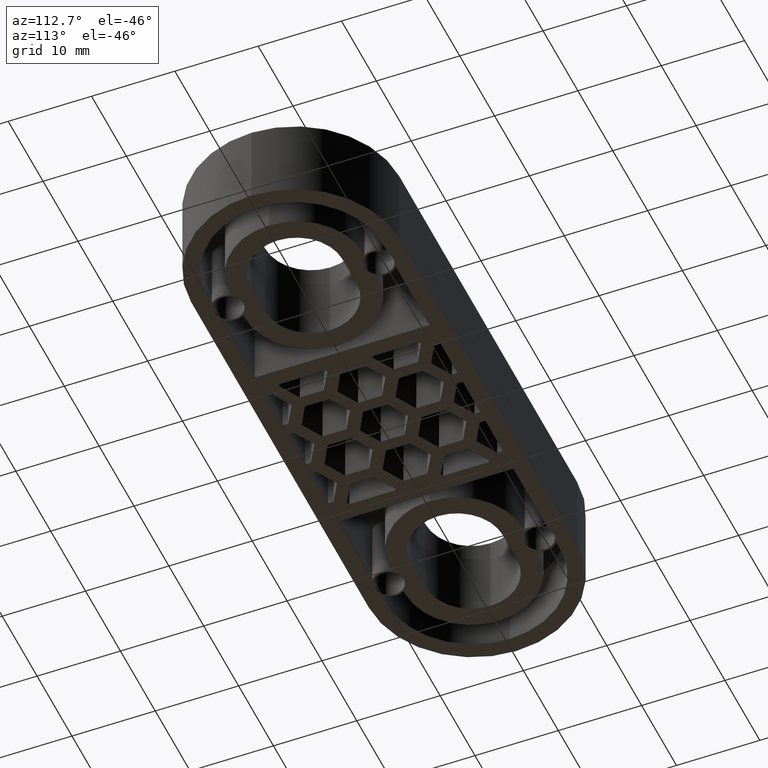
[diagram: clean part render]
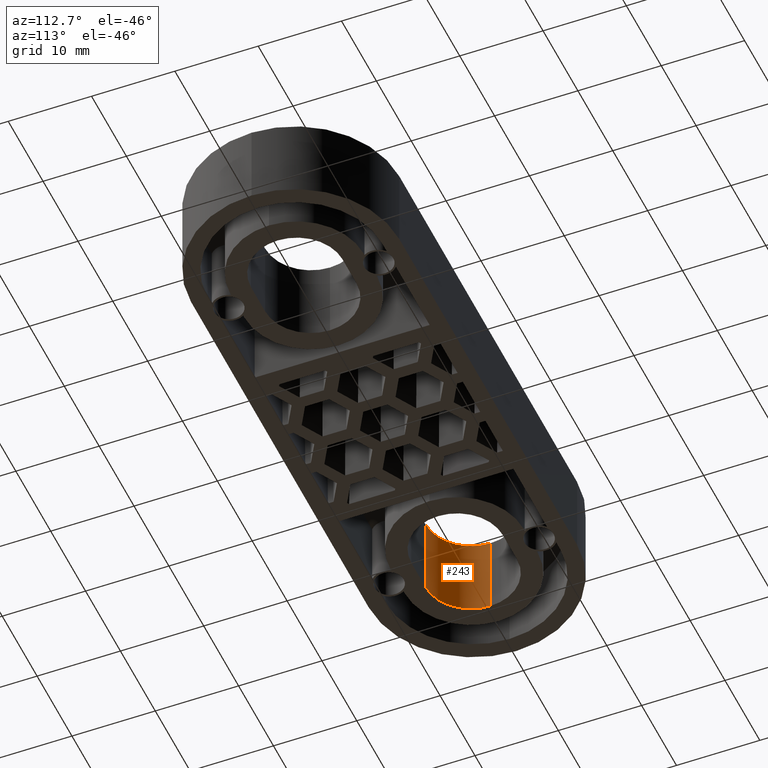
[diagram: same view with one face highlighted and labeled with its STEP entity id]
A machine part, auxiliary view. The second image highlights one B-rep face of the part: STEP entity #243.
In plain terms, the highlighted cylindrical surface (partial cylindrical patch) has radius 5.5 mm, axis along (0, 0, 1).
Its self-contained STEP definition (entity closure, byte-faithful):
#243 = ADVANCED_FACE( '', ( #670 ), #671, .F. );
#670 = FACE_OUTER_BOUND( '', #1152, .T. );
#671 = CYLINDRICAL_SURFACE( '', #1153, 5.50000000000000 );
#1152 = EDGE_LOOP( '', ( #2672, #2673, #2674, #2675 ) );
#1153 = AXIS2_PLACEMENT_3D( '', #2676, #2677, #2678 );
#2672 = ORIENTED_EDGE( '', *, *, #3518, .T. );
#2673 = ORIENTED_EDGE( '', *, *, #3298, .T. );
#2674 = ORIENTED_EDGE( '', *, *, #3513, .F. );
#2675 = ORIENTED_EDGE( '', *, *, #3043, .F. );
#2676 = CARTESIAN_POINT( '', ( -25.0000000000000, -3.72450490072364E-015, 10.0000100000655 ) );
#2677 = DIRECTION( '', ( 0.000000000000000, 6.12303176911189E-017, 1.00000000000000 ) );
#2678 = DIRECTION( '', ( 0.000000000000000, 1.00000000000000, -6.12303176911189E-017 ) );
#3043 = EDGE_CURVE( '', #3614, #3615, #3616, .T. );
#3298 = EDGE_CURVE( '', #4087, #4084, #4088, .T. );
#3513 = EDGE_CURVE( '', #3615, #4084, #4410, .T. );
#3518 = EDGE_CURVE( '', #3614, #4087, #4415, .T. );
#3614 = VERTEX_POINT( '', #4551 );
#3615 = VERTEX_POINT( '', #4552 );
#3616 = CIRCLE( '', #4553, 5.50000000000000 );
#4084 = VERTEX_POINT( '', #5216 );
#4087 = VERTEX_POINT( '', #5219 );
#4088 = CIRCLE( '', #5220, 5.50000000000000 );
#4410 = LINE( '', #5748, #5749 );
#4415 = LINE( '', #5758, #5759 );
#4551 = CARTESIAN_POINT( '', ( -25.0000000000000, -5.50000000000000, 9.99999999999999 ) );
#4552 = CARTESIAN_POINT( '', ( -30.5000000000000, -3.36229389599416E-015, 9.99999999999999 ) );
#4553 = AXIS2_PLACEMENT_3D( '', #5927, #5928, #5929 );
#5216 = CARTESIAN_POINT( '', ( -30.5000000000000, -4.33680930224202E-015, -9.99994816119898E-006 ) );
#5219 = CARTESIAN_POINT( '', ( -25.0000000000000, -5.50000000000000, -9.99994816086221E-006 ) );
#5220 = AXIS2_PLACEMENT_3D( '', #6302, #6303, #6304 );
#5748 = CARTESIAN_POINT( '', ( -30.5000000000000, -3.72450490072364E-015, 10.0000100000655 ) );
#5749 = VECTOR( '', #6535, 1000.00000000000 );
#5758 = CARTESIAN_POINT( '', ( -25.0000000000000, -5.50000000000000, 10.0000100000655 ) );
#5759 = VECTOR( '', #6540, 1000.00000000000 );
#5927 = CARTESIAN_POINT( '', ( -25.0000000000000, -3.72450551303083E-015, 9.99999999999999 ) );
#5928 = DIRECTION( '', ( 0.000000000000000, -6.12303176911189E-017, -1.00000000000000 ) );
#5929 = DIRECTION( '', ( 0.000000000000000, 1.00000000000000, -6.12303176911189E-017 ) );
#6302 = CARTESIAN_POINT( '', ( -25.0000000000000, -4.33680930224202E-015, -9.99994816119898E-006 ) );
#6303 = DIRECTION( '', ( 0.000000000000000, -6.12303176911189E-017, -1.00000000000000 ) );
#6304 = DIRECTION( '', ( 0.000000000000000, -1.00000000000000, 6.12303176911189E-017 ) );
#6535 = DIRECTION( '', ( 0.000000000000000, -6.12303176911189E-017, -1.00000000000000 ) );
#6540 = DIRECTION( '', ( 0.000000000000000, -6.12303176911189E-017, -1.00000000000000 ) );